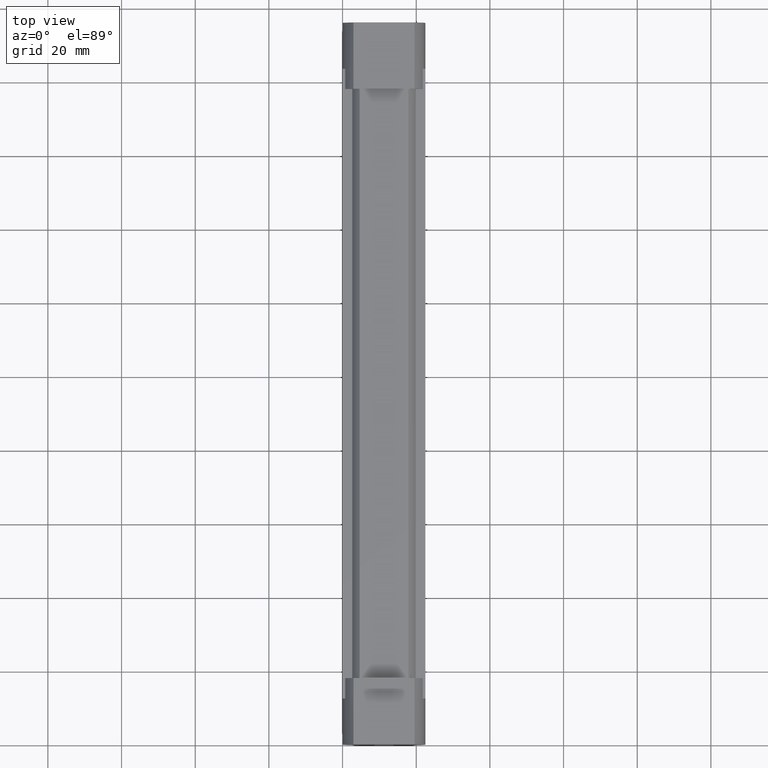
[diagram: clean part render]
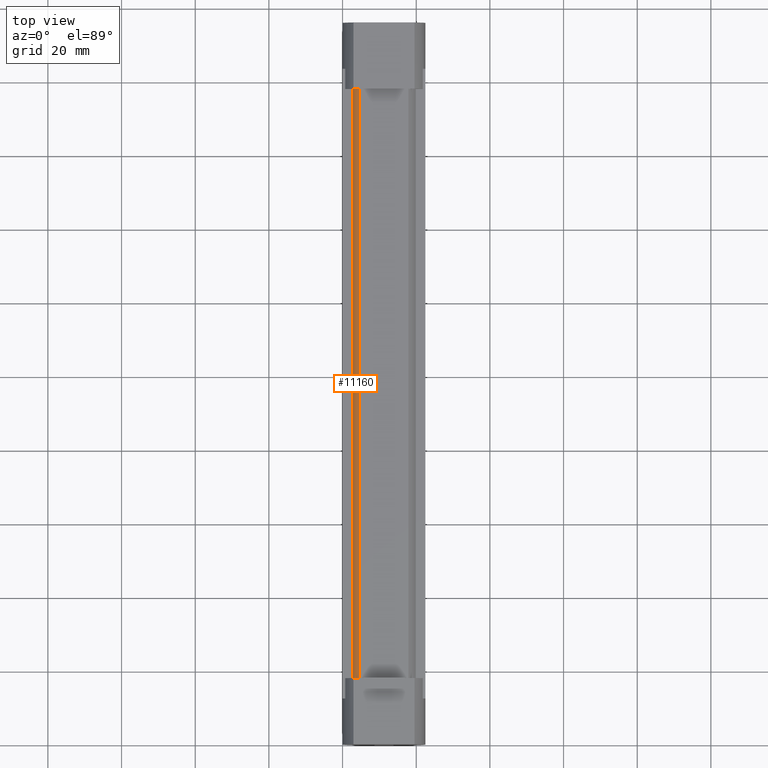
[diagram: same view with one face highlighted and labeled with its STEP entity id]
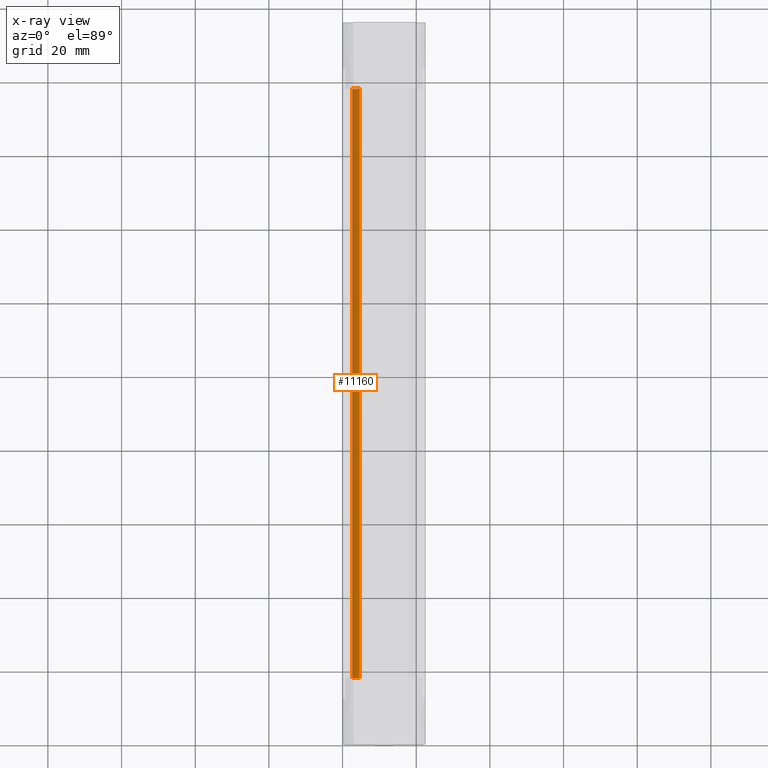
[diagram: x-ray of the same camera — body ghosted, the highlighted face saturated]
A machine part, top view. The second image highlights one B-rep face of the part: STEP entity #11160.
The next image is the same camera in x-ray: the body ghosted, the highlighted face saturated — about 0% of this face is hidden behind the body in this view.
In plain terms, the highlighted cylindrical surface (edge-blend (fillet) strip) has radius 9.5 mm, axis along (0, -1, 0).
Its self-contained STEP definition (entity closure, byte-faithful):
#6970=CARTESIAN_POINT('',(18.0000000000001,-8.61684396980704,-22.));
#6980=VERTEX_POINT('',#6970);
#7010=CARTESIAN_POINT('',(18.0000000000001,0.,-18.));
#7020=DIRECTION('',(-1.,0.,0.));
#7030=DIRECTION('',(0.,0.,1.));
#7040=AXIS2_PLACEMENT_3D('',#7010,#7020,#7030);
#7050=CIRCLE('',#7040,9.5);
#7060=CARTESIAN_POINT('',(18.0000000000001,-6.63400331624879,-24.8));
#7070=VERTEX_POINT('',#7060);
#7080=EDGE_CURVE('',#7070,#6980,#7050,.T.);
#8170=CARTESIAN_POINT('',(178.,-6.63400331624879,-24.8));
#8180=VERTEX_POINT('',#8170);
#8210=CARTESIAN_POINT('',(178.,0.,-18.));
#8220=DIRECTION('',(-1.,0.,0.));
#8230=DIRECTION('',(0.,0.,1.));
#8240=AXIS2_PLACEMENT_3D('',#8210,#8220,#8230);
#8250=CIRCLE('',#8240,9.5);
#8260=CARTESIAN_POINT('',(178.,-8.61684396980704,-22.));
#8270=VERTEX_POINT('',#8260);
#8280=EDGE_CURVE('',#8180,#8270,#8250,.T.);
#10240=CARTESIAN_POINT('',(98.,0.,-18.));
#10250=DIRECTION('',(-1.,0.,0.));
#10260=DIRECTION('',(0.,0.,1.));
#10270=AXIS2_PLACEMENT_3D('',#10240,#10250,#10260);
#10280=CYLINDRICAL_SURFACE('',#10270,9.5);
#10720=CARTESIAN_POINT('',(98.,-6.63400331624879,-24.8));
#10730=DIRECTION('',(-1.,0.,0.));
#10740=VECTOR('',#10730,1.);
#10750=LINE('',#10720,#10740);
#10760=EDGE_CURVE('',#8180,#7070,#10750,.T.);
#11050=ORIENTED_EDGE('',*,*,#7080,.F.);
#11060=CARTESIAN_POINT('',(98.,-8.61684396980704,-22.));
#11070=DIRECTION('',(-1.,0.,0.));
#11080=VECTOR('',#11070,1.);
#11090=LINE('',#11060,#11080);
#11100=EDGE_CURVE('',#8270,#6980,#11090,.T.);
#11110=ORIENTED_EDGE('',*,*,#11100,.T.);
#11120=ORIENTED_EDGE('',*,*,#8280,.T.);
#11130=ORIENTED_EDGE('',*,*,#10760,.F.);
#11140=EDGE_LOOP('',(#11130,#11120,#11110,#11050));
#11150=FACE_OUTER_BOUND('',#11140,.T.);
#11160=ADVANCED_FACE('',(#11150),#10280,.T.);